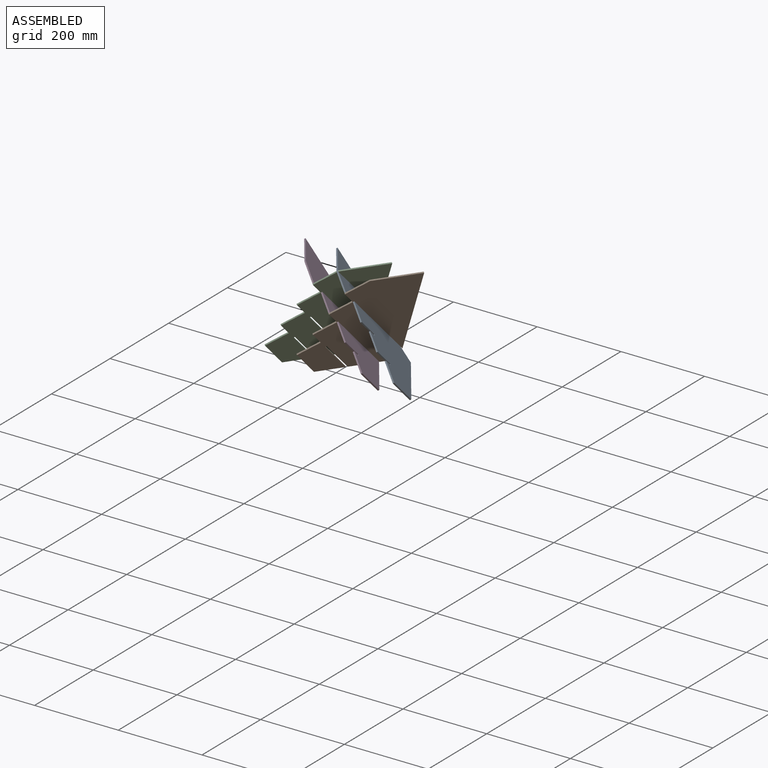
[diagram: assembled view]
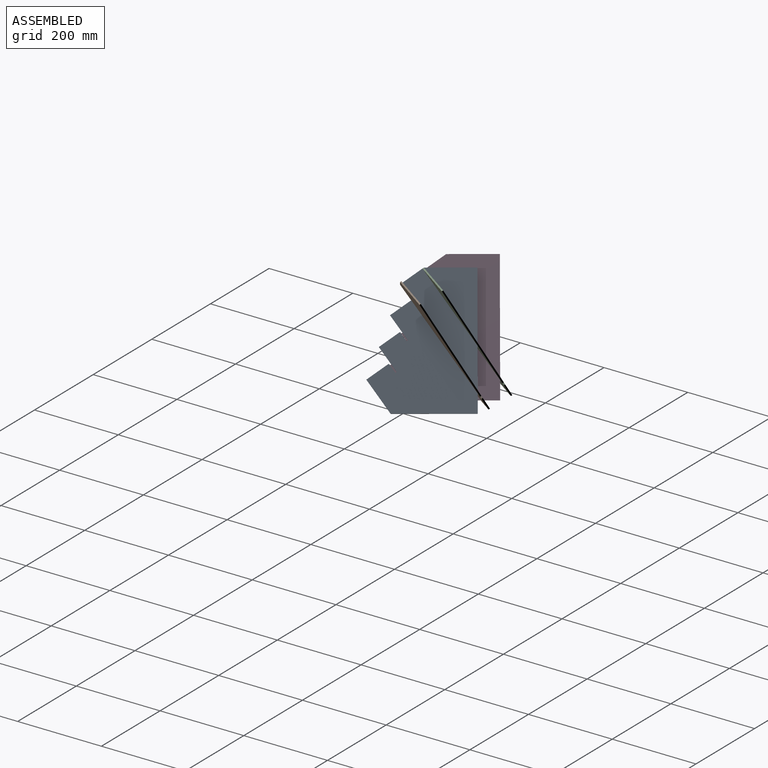
[diagram: assembled view, second angle]
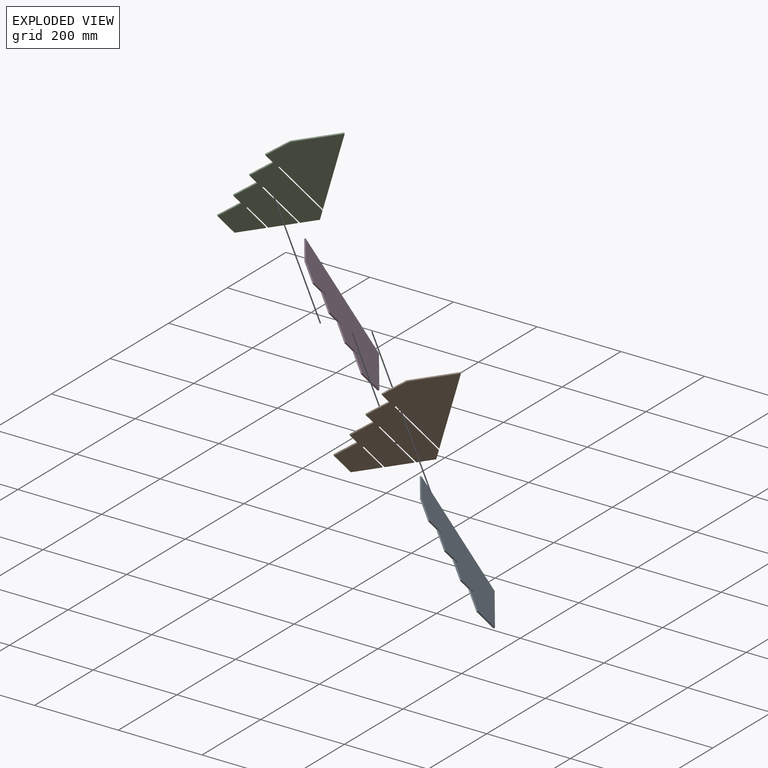
[diagram: exploded view]
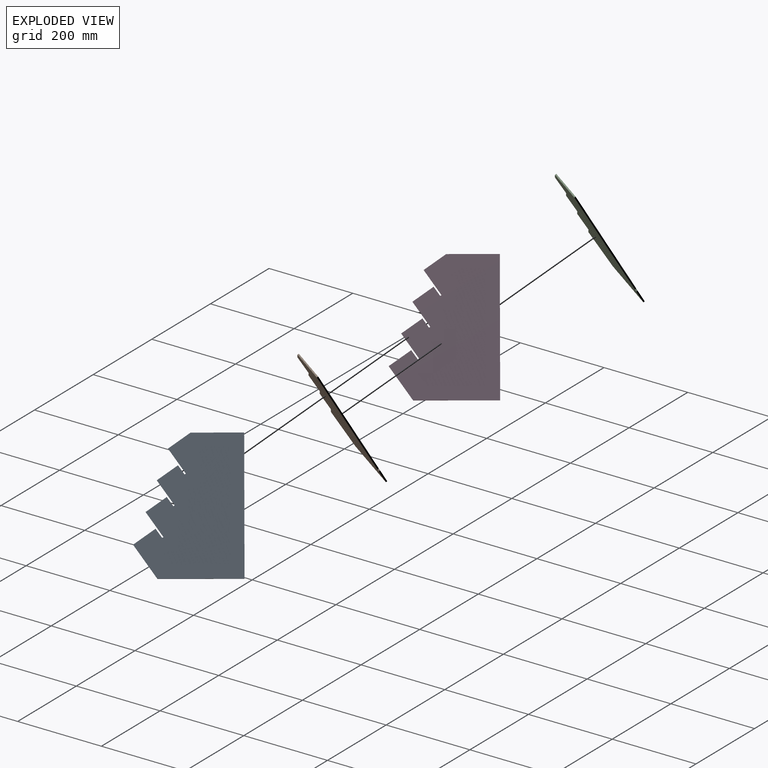
[diagram: exploded view, second angle]
ASSEMBLY  parts=4 mates=4
PART A: 19 faces, bbox 217.8x198.9x250.3 mm
  f0: plane 44.24x44.24mm, normal (-0.71,-0.5,-0.5), area 191.5mm2, adj f1,f16,f17,f18
  f1: plane 4.49x3.18mm, normal (0,-0.71,0.71), area 10.1mm2, adj f0,f2,f17,f18
  f2: plane 17.3x17.3mm, normal (0.71,0.5,0.5), area 70.6mm2, adj f1,f3,f17,f18
  f3: plane 38.17x26.99mm, normal (0,-0.71,0.71), area 161.3mm2, adj f2,f4,f17,f18
  f4: plane 44.24x44.24mm, normal (-0.71,-0.5,-0.5), area 191.5mm2, adj f3,f5,f17,f18
  f5: plane 4.49x3.18mm, normal (0,-0.71,0.71), area 10.1mm2, adj f4,f6,f17,f18
  f6: plane 17.3x17.3mm, normal (0.71,0.5,0.5), area 70.6mm2, adj f5,f7,f17,f18
  f7: plane 38.17x26.99mm, normal (0,-0.71,0.71), area 161.3mm2, adj f6,f8,f17,f18
  f8: plane 44.24x44.24mm, normal (-0.71,-0.5,-0.5), area 191.5mm2, adj f7,f9,f17,f18
  f9: plane 4.49x3.18mm, normal (0,-0.71,0.71), area 10.1mm2, adj f8,f10,f17,f18
  f10: plane 17.3x17.3mm, normal (0.71,0.5,0.5), area 70.6mm2, adj f9,f11,f17,f18
  f11: plane 40.41x28.58mm, normal (0,-0.71,0.71), area 171.4mm2, adj f10,f12,f17,f18
  f12: plane 59.96x59.96mm, normal (-0.71,-0.5,-0.5), area 262.1mm2, adj f11,f13,f17,f18
  f13: plane 140.55x100.51mm, normal (-0.41,0.29,-0.87), area 540.4mm2, adj f12,f14,f17,f18
  f14: plane 250.32x119.5mm, normal (0.58,0.82,0), area 911.9mm2, adj f13,f15,f17,f18
  f15: plane 87.3x62.85mm, normal (0.41,-0.29,0.87), area 333.3mm2, adj f14,f16,f17,f18
  f16: plane 40.41x28.58mm, normal (0,-0.71,0.71), area 171.4mm2, adj f0,f15,f17,f18
  f17: plane 248.73x215.52mm, normal (0.71,-0.5,-0.5), area 48164.6mm2, adj f0,f1,f2,f3,f4,f5,f6,f7
  f18: plane 248.73x215.52mm, normal (-0.71,0.5,0.5), area 48164.6mm2, adj f0,f1,f2,f3,f4,f5,f6,f7
PART B: 25 faces, bbox 222x204.9x250.3 mm
  f0: plane 93.24x67.05mm, normal (0.41,-0.29,0.87), area 356.4mm2, adj f1,f22,f23,f24
  f1: plane 42.66x30.16mm, normal (0,-0.71,0.71), area 181.5mm2, adj f0,f2,f23,f24
  f2: plane 28.53x28.53mm, normal (-0.71,-0.5,-0.5), area 121mm2, adj f1,f3,f23,f24
  f3: plane 40.41x28.58mm, normal (0,-0.71,0.71), area 171.4mm2, adj f2,f4,f23,f24
  f4: plane 28.53x28.53mm, normal (-0.71,-0.5,-0.5), area 121mm2, adj f3,f5,f23,f24
  f5: plane 40.41x28.58mm, normal (0,-0.71,0.71), area 171.4mm2, adj f4,f6,f23,f24
  f6: plane 28.53x28.53mm, normal (-0.71,-0.5,-0.5), area 121mm2, adj f5,f7,f23,f24
  f7: plane 40.41x28.58mm, normal (0,-0.71,0.71), area 171.4mm2, adj f6,f8,f23,f24
  f8: plane 59.96x59.96mm, normal (-0.71,-0.5,-0.5), area 262.1mm2, adj f7,f9,f23,f24
  f9: plane 55.56x40.41mm, normal (-0.41,0.29,-0.87), area 209.9mm2, adj f8,f10,f23,f24
  f10: plane 71.23x71.23mm, normal (0.71,0.5,0.5), area 312.7mm2, adj f9,f11,f23,f24
  f11: plane 4.49x3.18mm, normal (0,0.71,-0.71), area 10.1mm2, adj f10,f12,f23,f24
  f12: plane 72.82x72.82mm, normal (-0.71,-0.5,-0.5), area 319.8mm2, adj f11,f13,f23,f24
  f13: plane 52.39x38.17mm, normal (-0.41,0.29,-0.87), area 197.5mm2, adj f12,f14,f23,f24
  f14: plane 125.16x125.16mm, normal (0.71,0.5,0.5), area 554.9mm2, adj f13,f15,f23,f24
  f15: plane 4.49x3.18mm, normal (0,0.71,-0.71), area 10.1mm2, adj f14,f16,f23,f24
  f16: plane 126.75x126.75mm, normal (-0.71,-0.5,-0.5), area 562mm2, adj f15,f17,f23,f24
  f17: plane 35.37x26.13mm, normal (-0.41,0.29,-0.87), area 131.4mm2, adj f16,f18,f23,f24
  f18: plane 27.12x14.28mm, normal (0.58,0.82,0), area 93.6mm2, adj f17,f19,f23,f24
  f19: plane 153.56x153.56mm, normal (0.71,0.5,0.5), area 682.4mm2, adj f18,f20,f23,f24
  f20: plane 4.49x3.18mm, normal (0,0.71,-0.71), area 10.1mm2, adj f19,f21,f23,f24
  f21: plane 150.38x150.38mm, normal (-0.71,-0.5,-0.5), area 668.1mm2, adj f20,f22,f23,f24
  f22: plane 220.03x105.22mm, normal (0.58,0.82,0), area 800.8mm2, adj f0,f21,f23,f24
  f23: plane 248.73x219.72mm, normal (0.71,-0.5,-0.5), area 49279mm2, adj f0,f1,f2,f3,f4,f5,f6,f7
  f24: plane 248.73x219.72mm, normal (-0.71,0.5,0.5), area 49279mm2, adj f0,f1,f2,f3,f4,f5,f6,f7
PART C: same geometry as B
PART D: same geometry as A
PLACE A rot(axis=(0,-0.71,0.71),90deg) t=(300.31,-210.79,-435.09)mm
PLACE B t=(-113.52,63.41,-160.89)mm
PLACE C t=(-189.85,63.41,-160.89)mm
PLACE D rot(axis=(0,-0.71,0.71),90deg) t=(223.98,-210.79,-435.09)mm
MATE fastened B.f23 <-> D.f6  axis (0.71,-0.5,-0.5) through (251.36,-21.72,-111.31)mm
MATE fastened C.f23 <-> D.f2  axis (0.71,-0.5,-0.5) through (213.19,-21.67,-57.39)mm
MATE planar D.f16 <-> C.f1  axis (0,-0.71,0.71) through (190.74,-50.04,-0.44)mm
MATE fastened A.f2 <-> B.f23  axis (0.71,-0.5,-0.5) through (289.52,-21.67,-57.39)mm
